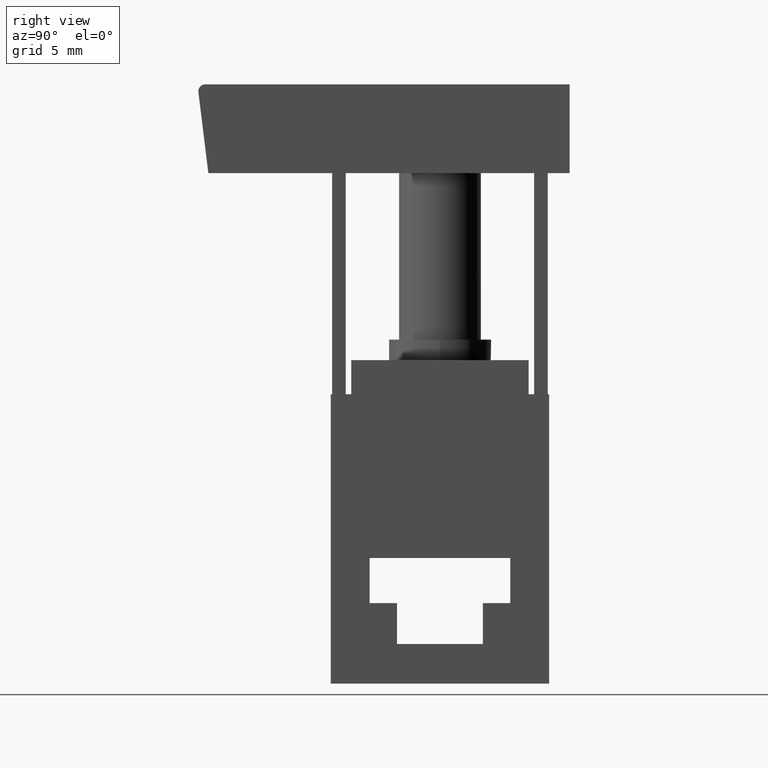
[diagram: clean part render]
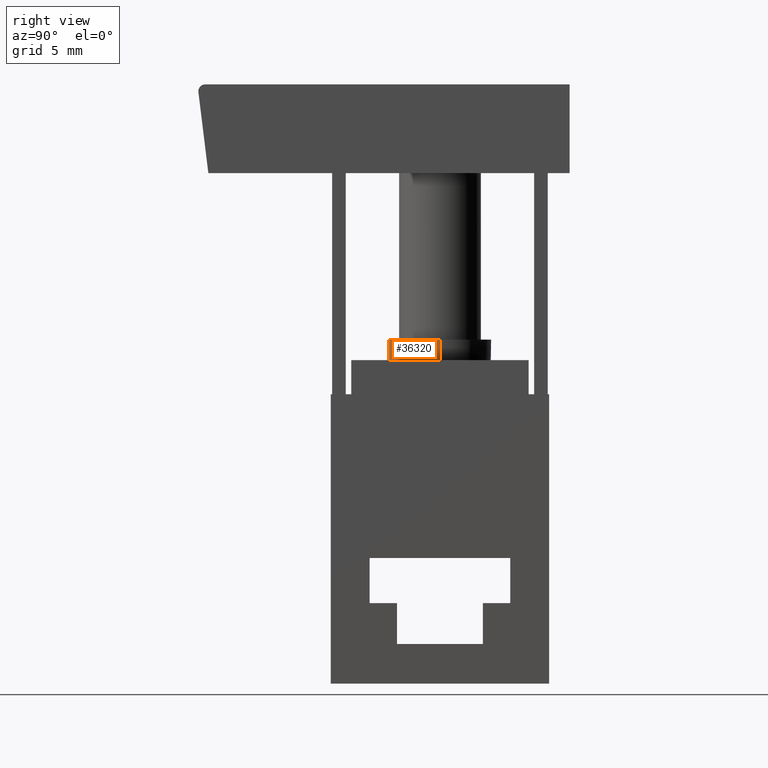
[diagram: same view with one face highlighted and labeled with its STEP entity id]
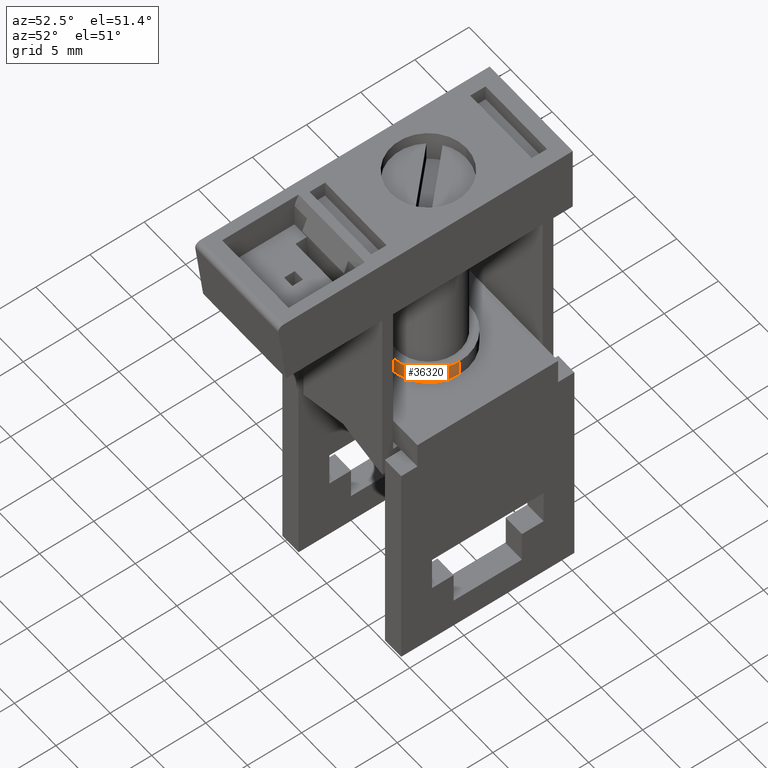
[diagram: same view with one face highlighted and labeled with its STEP entity id]
A machine part, right view. The second image highlights one B-rep face of the part: STEP entity #36320.
A second angle (auxiliary view) of the same face is appended — the face is thin or edge-on in the first view.
In plain terms, the highlighted cylindrical surface (partial cylindrical patch) has radius 3.75 mm, axis along (0, 0, 1).
Its self-contained STEP definition (entity closure, byte-faithful):
#26090=CARTESIAN_POINT('',(-26.7056108469937,9.87395297478266E-14,
7.99999999999994));
#26100=DIRECTION('',(7.28920975411253E-15,1.,1.03685905229987E-28));
#26110=DIRECTION('',(1.,-7.28920975411253E-15,7.24514098033355E-15));
#26120=AXIS2_PLACEMENT_3D('',#26090,#26100,#26110);
#26130=CIRCLE('',#26120,3.75);
#26140=CARTESIAN_POINT('',(-30.4556108469937,1.26121335597418E-13,
7.99999999999991));
#26150=VERTEX_POINT('',#26140);
#26160=CARTESIAN_POINT('',(-22.9556108469937,7.13873404833976E-14,
7.99999999999997));
#26170=VERTEX_POINT('',#26160);
#26180=EDGE_CURVE('',#26150,#26170,#26130,.T.);
#26410=CARTESIAN_POINT('',(-22.9556108469937,-0.749999999999929,
7.99999999999997));
#26420=DIRECTION('',(7.28920975411253E-15,1.,1.03685905229987E-28));
#26430=VECTOR('',#26420,1.);
#26440=LINE('',#26410,#26430);
#26450=CARTESIAN_POINT('',(-22.9556108469937,-1.49999999999993,
7.99999999999997));
#26460=VERTEX_POINT('',#26450);
#26470=EDGE_CURVE('',#26460,#26170,#26440,.T.);
#26510=CARTESIAN_POINT('',(-30.4556108469937,-0.749999999999874,
7.99999999999991));
#26520=DIRECTION('',(7.28920975411253E-15,1.,1.03685905229987E-28));
#26530=VECTOR('',#26520,1.);
#26540=LINE('',#26510,#26530);
#26550=CARTESIAN_POINT('',(-30.4556108469937,-1.49999999999987,
7.99999999999991));
#26560=VERTEX_POINT('',#26550);
#26570=EDGE_CURVE('',#26560,#26150,#26540,.T.);
#26590=CARTESIAN_POINT('',(-26.7056108469937,-1.4999999999999,
7.99999999999994));
#26600=DIRECTION('',(7.28920975411253E-15,1.,1.03685905229987E-28));
#26610=DIRECTION('',(1.,-7.28920975411253E-15,7.24514098033355E-15));
#26620=AXIS2_PLACEMENT_3D('',#26590,#26600,#26610);
#26630=CIRCLE('',#26620,3.75);
#26810=EDGE_CURVE('',#26560,#26460,#26630,.T.);
#36210=CARTESIAN_POINT('',(-26.7056108469937,-0.749999999999901,
7.99999999999994));
#36220=DIRECTION('',(7.28920975411253E-15,1.,1.03685905229987E-28));
#36230=DIRECTION('',(1.,-7.28920975411253E-15,7.24514098033355E-15));
#36240=AXIS2_PLACEMENT_3D('',#36210,#36220,#36230);
#36250=CYLINDRICAL_SURFACE('',#36240,3.75);
#36260=ORIENTED_EDGE('',*,*,#26810,.T.);
#36270=ORIENTED_EDGE('',*,*,#26570,.F.);
#36280=ORIENTED_EDGE('',*,*,#26180,.F.);
#36290=ORIENTED_EDGE('',*,*,#26470,.T.);
#36300=EDGE_LOOP('',(#36290,#36280,#36270,#36260));
#36310=FACE_OUTER_BOUND('',#36300,.T.);
#36320=ADVANCED_FACE('',(#36310),#36250,.T.);